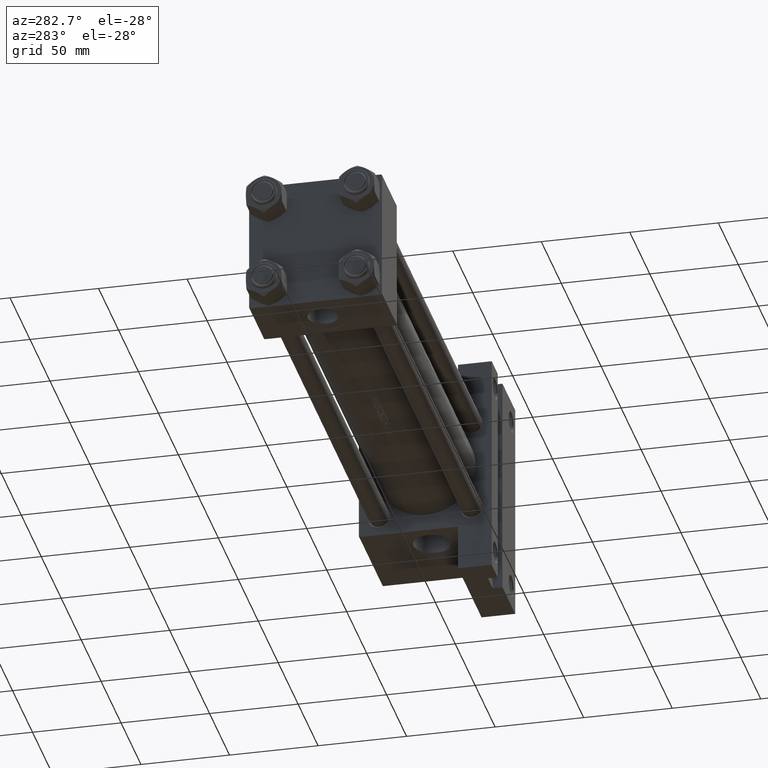
[diagram: clean part render]
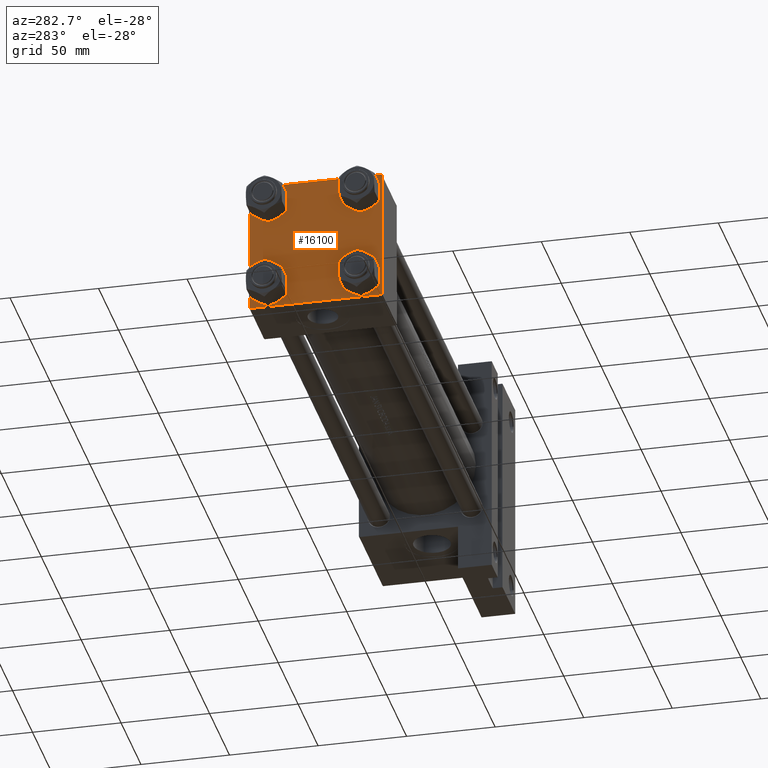
[diagram: same view with one face highlighted and labeled with its STEP entity id]
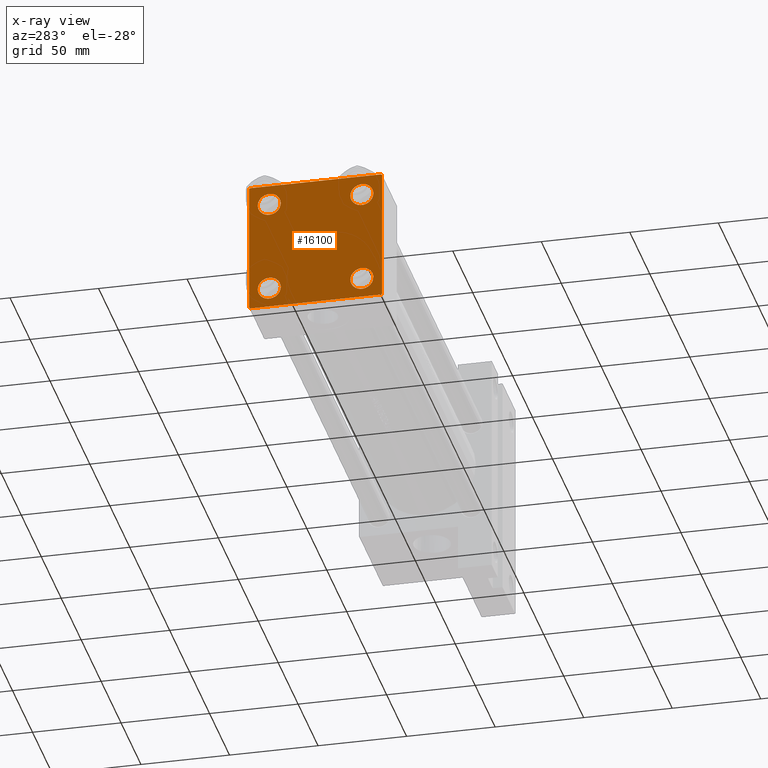
[diagram: x-ray of the same camera — body ghosted, the highlighted face saturated]
A machine part, auxiliary view. The second image highlights one B-rep face of the part: STEP entity #16100.
The next image is the same camera in x-ray: the body ghosted, the highlighted face saturated — about 0% of this face is hidden behind the body in this view.
In plain terms, the highlighted planar face has unit normal (-1, 0, -0).
Its self-contained STEP definition (entity closure, byte-faithful):
#26 = ORIENTED_EDGE ( 'NONE', *, *, #9174, .T. ) ;
#244 = VERTEX_POINT ( 'NONE', #7483 ) ;
#520 = FACE_BOUND ( 'NONE', #7120, .T. ) ;
#597 = DIRECTION ( 'NONE',  ( 1.000000000000000000, -0.000000000000000000, 0.000000000000000000 ) ) ;
#676 = AXIS2_PLACEMENT_3D ( 'NONE', #13237, #2842, #17553 ) ;
#987 = FACE_BOUND ( 'NONE', #1303, .T. ) ;
#1057 = CIRCLE ( 'NONE', #14942, 6.500000000000015987 ) ;
#1303 = EDGE_LOOP ( 'NONE', ( #42687, #23950 ) ) ;
#1422 = CARTESIAN_POINT ( 'NONE',  ( 0.000000000000000000, -37.50000000000000711, 36.99999999999999289 ) ) ;
#1666 = VECTOR ( 'NONE', #28667, 1000.000000000000000 ) ;
#2113 = LINE ( 'NONE', #19970, #31959 ) ;
#2186 = CARTESIAN_POINT ( 'NONE',  ( 0.000000000000000000, -26.14999999999999147, 26.15000000000000924 ) ) ;
#2582 = ORIENTED_EDGE ( 'NONE', *, *, #18801, .T. ) ;
#2590 = AXIS2_PLACEMENT_3D ( 'NONE', #13641, #10985, #39386 ) ;
#2842 = DIRECTION ( 'NONE',  ( 1.000000000000000000, -0.000000000000000000, 0.000000000000000000 ) ) ;
#3146 = CARTESIAN_POINT ( 'NONE',  ( 0.000000000000000000, -37.24999999999975842, -37.25000000000027001 ) ) ;
#3200 = VERTEX_POINT ( 'NONE', #10833 ) ;
#3248 = VERTEX_POINT ( 'NONE', #44514 ) ;
#3609 = CIRCLE ( 'NONE', #15137, 6.500000000000023093 ) ;
#4192 = DIRECTION ( 'NONE',  ( 0.000000000000000000, 0.000000000000000000, 1.000000000000000000 ) ) ;
#4394 = CARTESIAN_POINT ( 'NONE',  ( 0.000000000000000000, 36.99999999999999289, 37.50000000000000000 ) ) ;
#5269 = CARTESIAN_POINT ( 'NONE',  ( 0.000000000000000000, -26.14999999999999147, -26.15000000000000924 ) ) ;
#5380 = AXIS2_PLACEMENT_3D ( 'NONE', #30967, #45635, #38420 ) ;
#5889 = EDGE_CURVE ( 'NONE', #3200, #3248, #45809, .T. ) ;
#6267 = DIRECTION ( 'NONE',  ( 0.000000000000000000, 0.000000000000000000, 1.000000000000000000 ) ) ;
#6278 = DIRECTION ( 'NONE',  ( 0.000000000000000000, 0.000000000000000000, 1.000000000000000000 ) ) ;
#6797 = CARTESIAN_POINT ( 'NONE',  ( 0.000000000000000000, 26.14999999999999858, -19.64999999999998792 ) ) ;
#7001 = VERTEX_POINT ( 'NONE', #1422 ) ;
#7120 = EDGE_LOOP ( 'NONE', ( #38417, #37898 ) ) ;
#7483 = CARTESIAN_POINT ( 'NONE',  ( 0.000000000000000000, 26.14999999999999858, 32.65000000000002700 ) ) ;
#7744 = DIRECTION ( 'NONE',  ( -1.000000000000000000, 0.000000000000000000, -0.000000000000000000 ) ) ;
#7792 = CIRCLE ( 'NONE', #30095, 6.500000000000023093 ) ;
#7977 = CARTESIAN_POINT ( 'NONE',  ( 0.000000000000000000, 0.000000000000000000, 0.000000000000000000 ) ) ;
#8177 = EDGE_CURVE ( 'NONE', #32528, #28256, #7792, .T. ) ;
#8578 = VECTOR ( 'NONE', #40708, 1000.000000000000000 ) ;
#9174 = EDGE_CURVE ( 'NONE', #39432, #39093, #21708, .T. ) ;
#10833 = CARTESIAN_POINT ( 'NONE',  ( 0.000000000000000000, 37.49999999999999289, 37.00000000000000000 ) ) ;
#10985 = DIRECTION ( 'NONE',  ( 1.000000000000000000, -0.000000000000000000, 0.000000000000000000 ) ) ;
#11317 = VECTOR ( 'NONE', #24194, 1000.000000000000000 ) ;
#11855 = VECTOR ( 'NONE', #24182, 1000.000000000000114 ) ;
#12243 = CARTESIAN_POINT ( 'NONE',  ( 0.000000000000000000, 36.99999999999997868, -37.50000000000000000 ) ) ;
#12277 = CARTESIAN_POINT ( 'NONE',  ( 0.000000000000000000, -26.14999999999999147, 19.64999999999999147 ) ) ;
#12388 = LINE ( 'NONE', #34285, #35966 ) ;
#12508 = DIRECTION ( 'NONE',  ( 1.000000000000000000, -0.000000000000000000, 0.000000000000000000 ) ) ;
#12799 = CARTESIAN_POINT ( 'NONE',  ( 0.000000000000000000, -26.14999999999999147, 32.65000000000003411 ) ) ;
#12889 = LINE ( 'NONE', #27556, #11855 ) ;
#12991 = VERTEX_POINT ( 'NONE', #12243 ) ;
#13237 = CARTESIAN_POINT ( 'NONE',  ( 0.000000000000000000, 26.14999999999999858, -26.15000000000000213 ) ) ;
#13641 = CARTESIAN_POINT ( 'NONE',  ( 0.000000000000000000, -26.14999999999999147, 26.15000000000000924 ) ) ;
#14045 = EDGE_LOOP ( 'NONE', ( #33941, #39736 ) ) ;
#14292 = EDGE_CURVE ( 'NONE', #20682, #19796, #1057, .T. ) ;
#14679 = EDGE_CURVE ( 'NONE', #38496, #3200, #12889, .T. ) ;
#14942 = AXIS2_PLACEMENT_3D ( 'NONE', #20743, #35407, #6278 ) ;
#14984 = FACE_BOUND ( 'NONE', #14045, .T. ) ;
#15137 = AXIS2_PLACEMENT_3D ( 'NONE', #22513, #36472, #4192 ) ;
#15305 = VERTEX_POINT ( 'NONE', #46440 ) ;
#16100 = ADVANCED_FACE ( 'NONE', ( #14984, #22671, #520, #987, #37346 ), #26034, .T. ) ;
#16831 = DIRECTION ( 'NONE',  ( 0.000000000000000000, 0.000000000000000000, 1.000000000000000000 ) ) ;
#16961 = EDGE_LOOP ( 'NONE', ( #18580, #46543, #17979, #26, #39125, #2582, #43573, #17914 ) ) ;
#16984 = LINE ( 'NONE', #45621, #11317 ) ;
#17553 = DIRECTION ( 'NONE',  ( 0.000000000000000000, 0.000000000000000000, 1.000000000000000000 ) ) ;
#17593 = CIRCLE ( 'NONE', #676, 6.500000000000015987 ) ;
#17914 = ORIENTED_EDGE ( 'NONE', *, *, #14679, .T. ) ;
#17979 = ORIENTED_EDGE ( 'NONE', *, *, #27706, .T. ) ;
#18580 = ORIENTED_EDGE ( 'NONE', *, *, #5889, .T. ) ;
#18801 = EDGE_CURVE ( 'NONE', #7001, #15305, #2113, .T. ) ;
#19412 = ORIENTED_EDGE ( 'NONE', *, *, #27169, .T. ) ;
#19796 = VERTEX_POINT ( 'NONE', #25085 ) ;
#19970 = CARTESIAN_POINT ( 'NONE',  ( -0.000000000000000000, -37.25000000000000000, 37.25000000000000000 ) ) ;
#20241 = DIRECTION ( 'NONE',  ( -0.000000000000000000, -0.7071067811865474617, -0.7071067811865474617 ) ) ;
#20682 = VERTEX_POINT ( 'NONE', #35503 ) ;
#20743 = CARTESIAN_POINT ( 'NONE',  ( 0.000000000000000000, -26.14999999999999147, -26.15000000000000924 ) ) ;
#20791 = EDGE_CURVE ( 'NONE', #244, #29277, #3609, .T. ) ;
#21708 = LINE ( 'NONE', #3146, #1666 ) ;
#21937 = AXIS2_PLACEMENT_3D ( 'NONE', #7977, #7744, #33740 ) ;
#22513 = CARTESIAN_POINT ( 'NONE',  ( 0.000000000000000000, 26.14999999999999858, 26.15000000000000213 ) ) ;
#22671 = FACE_BOUND ( 'NONE', #28003, .T. ) ;
#22884 = ORIENTED_EDGE ( 'NONE', *, *, #14292, .T. ) ;
#23132 = LINE ( 'NONE', #37095, #8578 ) ;
#23223 = DIRECTION ( 'NONE',  ( 0.000000000000000000, -1.000000000000000000, -9.251858538542972814E-17 ) ) ;
#23642 = DIRECTION ( 'NONE',  ( 1.000000000000000000, -0.000000000000000000, 0.000000000000000000 ) ) ;
#23950 = ORIENTED_EDGE ( 'NONE', *, *, #31946, .T. ) ;
#24182 = DIRECTION ( 'NONE',  ( 0.000000000000000000, 0.7071067811865474617, -0.7071067811865474617 ) ) ;
#24194 = DIRECTION ( 'NONE',  ( 0.000000000000000000, -1.000000000000000000, -9.251858538542971581E-17 ) ) ;
#24454 = AXIS2_PLACEMENT_3D ( 'NONE', #5269, #12508, #16831 ) ;
#25085 = CARTESIAN_POINT ( 'NONE',  ( 0.000000000000000000, -26.14999999999999147, -32.65000000000002700 ) ) ;
#25346 = CIRCLE ( 'NONE', #5380, 6.500000000000023093 ) ;
#25796 = EDGE_CURVE ( 'NONE', #38496, #15305, #16984, .T. ) ;
#26034 = PLANE ( 'NONE',  #21937 ) ;
#26111 = VERTEX_POINT ( 'NONE', #6797 ) ;
#27169 = EDGE_CURVE ( 'NONE', #19796, #20682, #47529, .T. ) ;
#27441 = CARTESIAN_POINT ( 'NONE',  ( 0.000000000000000000, 37.24999999999998579, -37.24999999999998579 ) ) ;
#27556 = CARTESIAN_POINT ( 'NONE',  ( 0.000000000000000000, 37.24999999999999289, 37.24999999999999289 ) ) ;
#27650 = EDGE_CURVE ( 'NONE', #37567, #26111, #28271, .T. ) ;
#27706 = EDGE_CURVE ( 'NONE', #12991, #39432, #12388, .T. ) ;
#27984 = CARTESIAN_POINT ( 'NONE',  ( 0.000000000000000000, 37.49999999999999289, 37.50000000000000000 ) ) ;
#28003 = EDGE_LOOP ( 'NONE', ( #22884, #19412 ) ) ;
#28256 = VERTEX_POINT ( 'NONE', #12277 ) ;
#28271 = CIRCLE ( 'NONE', #45212, 6.500000000000015987 ) ;
#28289 = VECTOR ( 'NONE', #42666, 1000.000000000000000 ) ;
#28667 = DIRECTION ( 'NONE',  ( 0.000000000000000000, -0.7071067811865524577, 0.7071067811865426878 ) ) ;
#28684 = DIRECTION ( 'NONE',  ( -0.000000000000000000, 0.7071067811865474617, 0.7071067811865474617 ) ) ;
#29277 = VERTEX_POINT ( 'NONE', #38266 ) ;
#29285 = CARTESIAN_POINT ( 'NONE',  ( 0.000000000000000000, -37.50000000000000000, -37.00000000000003553 ) ) ;
#29359 = EDGE_CURVE ( 'NONE', #26111, #37567, #17593, .T. ) ;
#30095 = AXIS2_PLACEMENT_3D ( 'NONE', #2186, #23642, #6267 ) ;
#30288 = CIRCLE ( 'NONE', #2590, 6.500000000000023093 ) ;
#30967 = CARTESIAN_POINT ( 'NONE',  ( 0.000000000000000000, 26.14999999999999858, 26.15000000000000213 ) ) ;
#31946 = EDGE_CURVE ( 'NONE', #29277, #244, #25346, .T. ) ;
#31959 = VECTOR ( 'NONE', #28684, 1000.000000000000114 ) ;
#32528 = VERTEX_POINT ( 'NONE', #12799 ) ;
#33740 = DIRECTION ( 'NONE',  ( -0.000000000000000000, 0.000000000000000000, 1.000000000000000000 ) ) ;
#33941 = ORIENTED_EDGE ( 'NONE', *, *, #8177, .T. ) ;
#34285 = CARTESIAN_POINT ( 'NONE',  ( 0.000000000000000000, 37.49999999999999289, -37.50000000000000000 ) ) ;
#35407 = DIRECTION ( 'NONE',  ( 1.000000000000000000, -0.000000000000000000, 0.000000000000000000 ) ) ;
#35503 = CARTESIAN_POINT ( 'NONE',  ( 0.000000000000000000, -26.14999999999999147, -19.64999999999999503 ) ) ;
#35966 = VECTOR ( 'NONE', #23223, 1000.000000000000000 ) ;
#36267 = EDGE_CURVE ( 'NONE', #7001, #39093, #23132, .T. ) ;
#36472 = DIRECTION ( 'NONE',  ( 1.000000000000000000, -0.000000000000000000, 0.000000000000000000 ) ) ;
#37095 = CARTESIAN_POINT ( 'NONE',  ( 0.000000000000000000, -37.50000000000000711, 37.49999999999999289 ) ) ;
#37147 = CARTESIAN_POINT ( 'NONE',  ( 0.000000000000000000, -37.00000000000002132, -37.50000000000000711 ) ) ;
#37346 = FACE_OUTER_BOUND ( 'NONE', #16961, .T. ) ;
#37567 = VERTEX_POINT ( 'NONE', #40430 ) ;
#37778 = VECTOR ( 'NONE', #20241, 1000.000000000000114 ) ;
#37898 = ORIENTED_EDGE ( 'NONE', *, *, #27650, .T. ) ;
#38266 = CARTESIAN_POINT ( 'NONE',  ( 0.000000000000000000, 26.14999999999999858, 19.64999999999998437 ) ) ;
#38417 = ORIENTED_EDGE ( 'NONE', *, *, #29359, .T. ) ;
#38420 = DIRECTION ( 'NONE',  ( 0.000000000000000000, 0.000000000000000000, 1.000000000000000000 ) ) ;
#38496 = VERTEX_POINT ( 'NONE', #4394 ) ;
#39093 = VERTEX_POINT ( 'NONE', #29285 ) ;
#39125 = ORIENTED_EDGE ( 'NONE', *, *, #36267, .F. ) ;
#39386 = DIRECTION ( 'NONE',  ( 0.000000000000000000, 0.000000000000000000, 1.000000000000000000 ) ) ;
#39432 = VERTEX_POINT ( 'NONE', #37147 ) ;
#39736 = ORIENTED_EDGE ( 'NONE', *, *, #44499, .T. ) ;
#39825 = EDGE_CURVE ( 'NONE', #3248, #12991, #45723, .T. ) ;
#40430 = CARTESIAN_POINT ( 'NONE',  ( 0.000000000000000000, 26.14999999999999858, -32.65000000000001990 ) ) ;
#40708 = DIRECTION ( 'NONE',  ( 0.000000000000000000, 9.251858538542971581E-17, -1.000000000000000000 ) ) ;
#42666 = DIRECTION ( 'NONE',  ( 0.000000000000000000, 0.000000000000000000, -1.000000000000000000 ) ) ;
#42687 = ORIENTED_EDGE ( 'NONE', *, *, #20791, .T. ) ;
#43573 = ORIENTED_EDGE ( 'NONE', *, *, #25796, .F. ) ;
#44416 = DIRECTION ( 'NONE',  ( 0.000000000000000000, 0.000000000000000000, 1.000000000000000000 ) ) ;
#44499 = EDGE_CURVE ( 'NONE', #28256, #32528, #30288, .T. ) ;
#44514 = CARTESIAN_POINT ( 'NONE',  ( 0.000000000000000000, 37.49999999999999289, -36.99999999999998579 ) ) ;
#44867 = CARTESIAN_POINT ( 'NONE',  ( 0.000000000000000000, 26.14999999999999858, -26.15000000000000213 ) ) ;
#45212 = AXIS2_PLACEMENT_3D ( 'NONE', #44867, #597, #44416 ) ;
#45621 = CARTESIAN_POINT ( 'NONE',  ( 0.000000000000000000, 37.49999999999999289, 37.50000000000000000 ) ) ;
#45635 = DIRECTION ( 'NONE',  ( 1.000000000000000000, -0.000000000000000000, 0.000000000000000000 ) ) ;
#45723 = LINE ( 'NONE', #27441, #37778 ) ;
#45809 = LINE ( 'NONE', #27984, #28289 ) ;
#46440 = CARTESIAN_POINT ( 'NONE',  ( 0.000000000000000000, -37.00000000000000711, 37.49999999999999289 ) ) ;
#46543 = ORIENTED_EDGE ( 'NONE', *, *, #39825, .T. ) ;
#47529 = CIRCLE ( 'NONE', #24454, 6.500000000000015987 ) ;